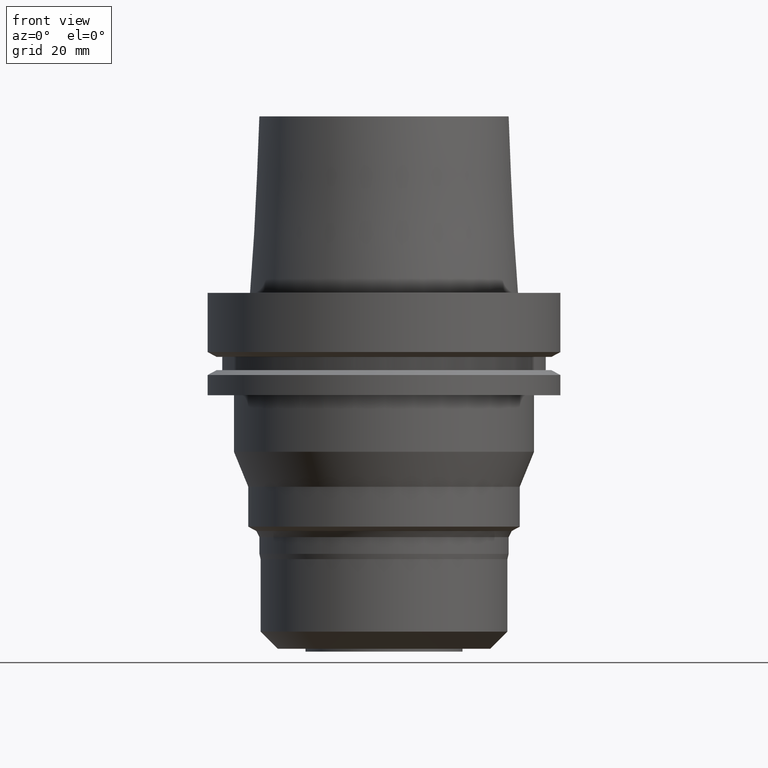
[diagram: clean part render]
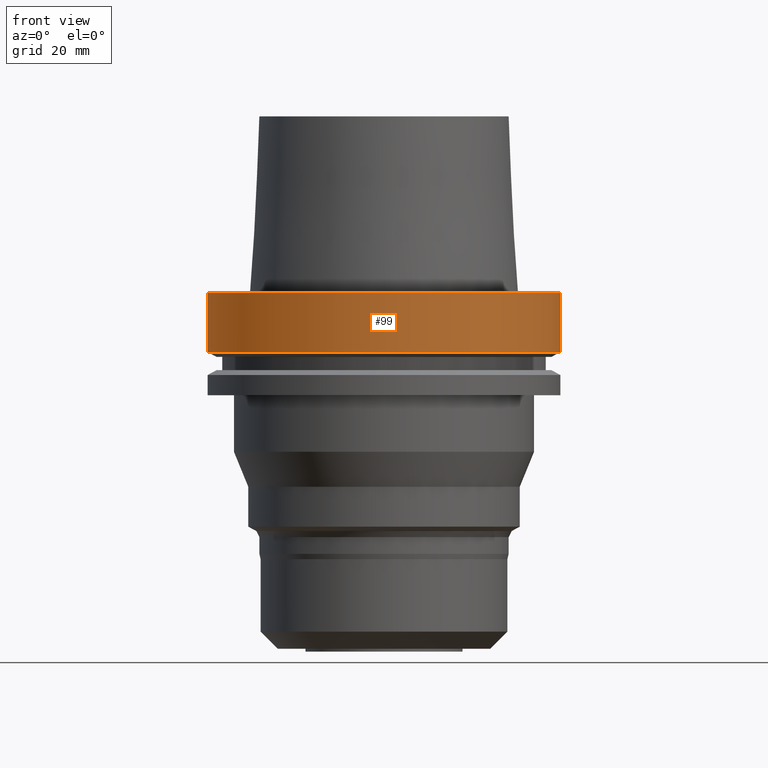
[diagram: same view with one face highlighted and labeled with its STEP entity id]
A machine part, front view. The second image highlights one B-rep face of the part: STEP entity #99.
In plain terms, the highlighted cylindrical surface (bore or boss wall) has radius 50 mm, axis along (0, 0, -1).
Its self-contained STEP definition (entity closure, byte-faithful):
#91=EDGE_CURVE('Unnamed[1]',#235,#235,#236,.T.);
#99=ADVANCED_FACE('Unnamed[1]',(#246,#247),#248,.T.);
#184=EDGE_CURVE('Unnamed[1]',#381,#381,#382,.T.);
#235=VERTEX_POINT('',#433);
#236=CIRCLE('',#434,50.0);
#246=FACE_BOUND('',#447,.T.);
#247=FACE_BOUND('',#448,.T.);
#248=CYLINDRICAL_SURFACE('',#449,50.0000000000001);
#381=VERTEX_POINT('',#614);
#382=CIRCLE('',#615,50.0000000000001);
#433=CARTESIAN_POINT('',(1.02578894188643E-015,50.0,-16.7524047358083));
#434=AXIS2_PLACEMENT_3D('',#653,#654,#655);
#447=EDGE_LOOP('',(#665));
#448=EDGE_LOOP('',(#666));
#449=AXIS2_PLACEMENT_3D('',#667,#668,#669);
#614=CARTESIAN_POINT('',(-6.16297582203916E-031,50.0,6.12323399573677E-015));
#615=AXIS2_PLACEMENT_3D('',#817,#818,#819);
#653=CARTESIAN_POINT('',(1.02578894188643E-015,-1.89670434854849E-014,-16.7524047358084));
#654=DIRECTION('',(6.12323399573677E-017,8.53138753389863E-016,-1.0));
#655=DIRECTION('',(-5.7066834909142E-032,1.0,8.53138753389863E-016));
#665=ORIENTED_EDGE('',*,*,#91,.F.);
#666=ORIENTED_EDGE('',*,*,#184,.T.);
#667=CARTESIAN_POINT('',(5.12894470943219E-016,-2.61131063317798E-014,-8.37620236790421));
#668=DIRECTION('',(6.12323399573677E-017,8.53138753389863E-016,-1.0));
#669=DIRECTION('',(-5.7066834909142E-032,1.0,8.53138753389863E-016));
#817=CARTESIAN_POINT('',(2.61049166101803E-030,-3.32591691780748E-014,-4.2632564145606E-014));
#818=DIRECTION('',(6.12323399573677E-017,8.53138753389863E-016,-1.0));
#819=DIRECTION('',(-5.7066834909142E-032,1.0,8.53138753389863E-016));